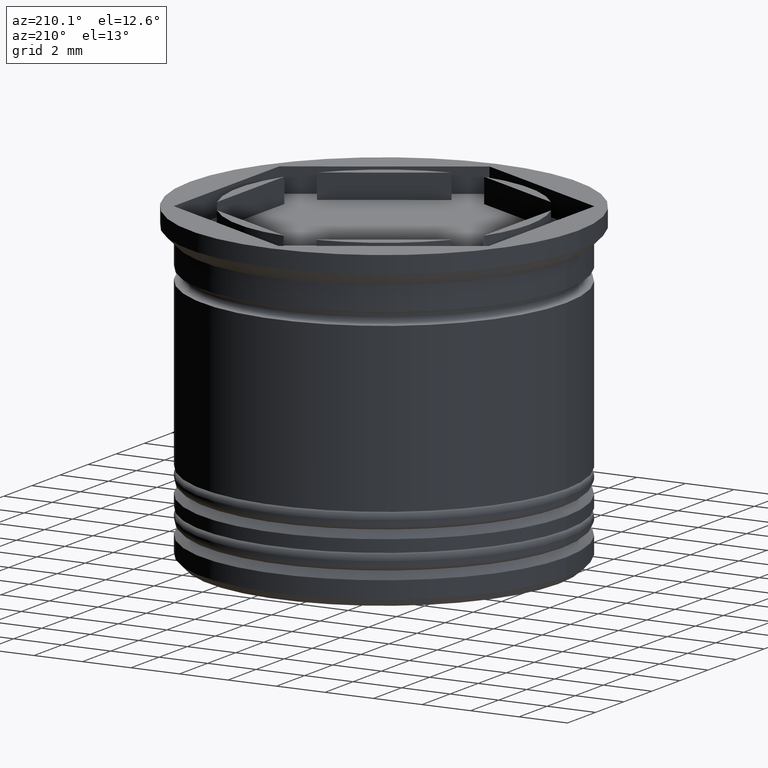
[diagram: clean part render]
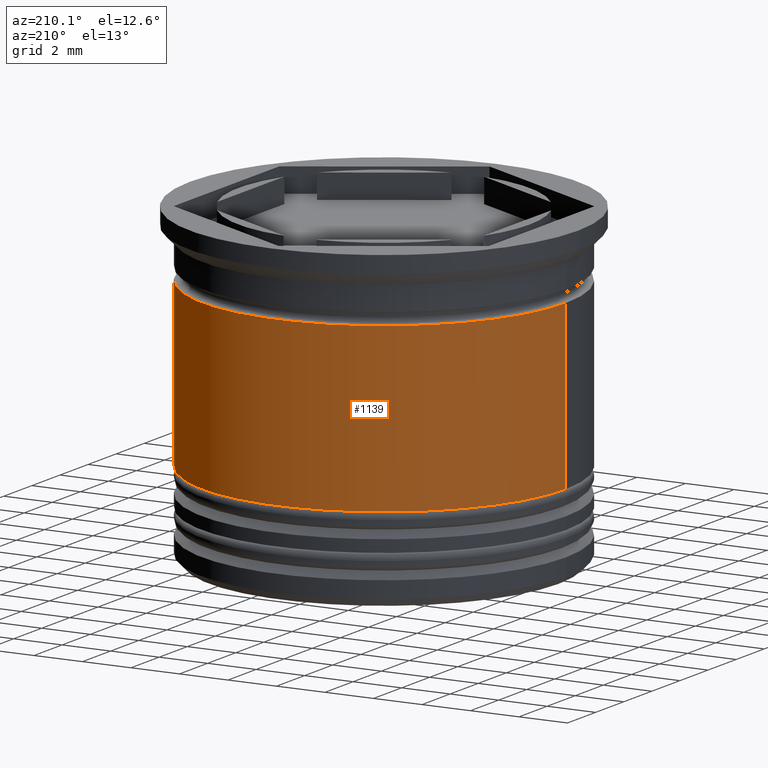
[diagram: same view with one face highlighted and labeled with its STEP entity id]
A machine part, auxiliary view. The second image highlights one B-rep face of the part: STEP entity #1139.
In plain terms, the highlighted cylindrical surface (partial cylindrical patch) has radius 7.5 mm, axis along (-0, -0, 1).
Its self-contained STEP definition (entity closure, byte-faithful):
#42 = LINE ( 'NONE', #194, #477 ) ;
#65 = CYLINDRICAL_SURFACE ( 'NONE', #732, 7.500000000000000000 ) ;
#68 = ORIENTED_EDGE ( 'NONE', *, *, #1482, .F. ) ;
#140 = VERTEX_POINT ( 'NONE', #845 ) ;
#187 = EDGE_CURVE ( 'NONE', #235, #1098, #1779, .T. ) ;
#194 = CARTESIAN_POINT ( 'NONE',  ( -7.500000000000000000, 9.184850993605147944E-16, 0.000000000000000000 ) ) ;
#235 = VERTEX_POINT ( 'NONE', #875 ) ;
#332 = LINE ( 'NONE', #926, #826 ) ;
#340 = CARTESIAN_POINT ( 'NONE',  ( 0.000000000000000000, 0.000000000000000000, -2.700000000000000178 ) ) ;
#477 = VECTOR ( 'NONE', #977, 1000.000000000000000 ) ;
#532 = DIRECTION ( 'NONE',  ( -0.000000000000000000, -0.000000000000000000, 1.000000000000000000 ) ) ;
#543 = CIRCLE ( 'NONE', #701, 7.499999999999998224 ) ;
#586 = EDGE_LOOP ( 'NONE', ( #1814, #822, #1688, #68 ) ) ;
#672 = CARTESIAN_POINT ( 'NONE',  ( -7.500000000000001776, 9.184850993605149917E-16, -9.500000000000000000 ) ) ;
#701 = AXIS2_PLACEMENT_3D ( 'NONE', #340, #1131, #1281 ) ;
#732 = AXIS2_PLACEMENT_3D ( 'NONE', #1896, #532, #1717 ) ;
#781 = DIRECTION ( 'NONE',  ( -0.000000000000000000, -0.000000000000000000, 1.000000000000000000 ) ) ;
#822 = ORIENTED_EDGE ( 'NONE', *, *, #1097, .T. ) ;
#826 = VECTOR ( 'NONE', #781, 1000.000000000000000 ) ;
#845 = CARTESIAN_POINT ( 'NONE',  ( -7.499999999999998224, 9.184850993605145972E-16, -2.700000000000000178 ) ) ;
#875 = CARTESIAN_POINT ( 'NONE',  ( 7.500000000000001776, 0.000000000000000000, -9.500000000000000000 ) ) ;
#926 = CARTESIAN_POINT ( 'NONE',  ( 7.500000000000000000, 0.000000000000000000, 0.000000000000000000 ) ) ;
#977 = DIRECTION ( 'NONE',  ( -0.000000000000000000, -0.000000000000000000, 1.000000000000000000 ) ) ;
#1039 = DIRECTION ( 'NONE',  ( 1.000000000000000000, 0.000000000000000000, 0.000000000000000000 ) ) ;
#1054 = AXIS2_PLACEMENT_3D ( 'NONE', #1062, #1806, #1039 ) ;
#1062 = CARTESIAN_POINT ( 'NONE',  ( 0.000000000000000000, 0.000000000000000000, -9.500000000000000000 ) ) ;
#1097 = EDGE_CURVE ( 'NONE', #1098, #140, #42, .T. ) ;
#1098 = VERTEX_POINT ( 'NONE', #672 ) ;
#1131 = DIRECTION ( 'NONE',  ( -0.000000000000000000, -0.000000000000000000, 1.000000000000000000 ) ) ;
#1139 = ADVANCED_FACE ( 'NONE', ( #1283 ), #65, .T. ) ;
#1227 = CARTESIAN_POINT ( 'NONE',  ( 7.499999999999998224, 0.000000000000000000, -2.700000000000000178 ) ) ;
#1281 = DIRECTION ( 'NONE',  ( 1.000000000000000000, 0.000000000000000000, 0.000000000000000000 ) ) ;
#1283 = FACE_OUTER_BOUND ( 'NONE', #586, .T. ) ;
#1482 = EDGE_CURVE ( 'NONE', #235, #1817, #332, .T. ) ;
#1524 = EDGE_CURVE ( 'NONE', #1817, #140, #543, .T. ) ;
#1688 = ORIENTED_EDGE ( 'NONE', *, *, #1524, .F. ) ;
#1717 = DIRECTION ( 'NONE',  ( 1.000000000000000000, 0.000000000000000000, 0.000000000000000000 ) ) ;
#1779 = CIRCLE ( 'NONE', #1054, 7.500000000000001776 ) ;
#1806 = DIRECTION ( 'NONE',  ( -0.000000000000000000, -0.000000000000000000, 1.000000000000000000 ) ) ;
#1814 = ORIENTED_EDGE ( 'NONE', *, *, #187, .T. ) ;
#1817 = VERTEX_POINT ( 'NONE', #1227 ) ;
#1896 = CARTESIAN_POINT ( 'NONE',  ( 0.000000000000000000, 0.000000000000000000, 0.000000000000000000 ) ) ;